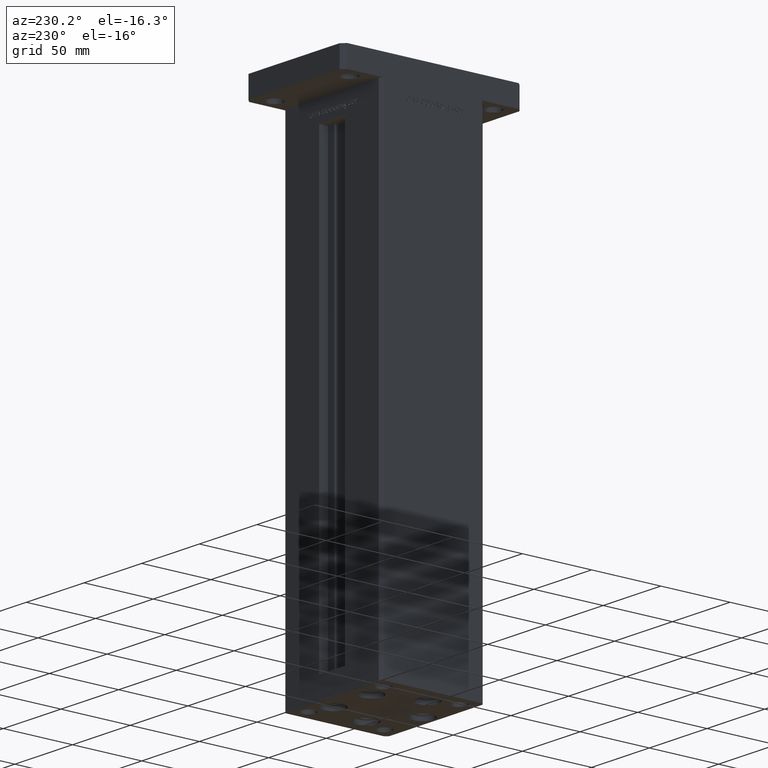
[diagram: clean part render]
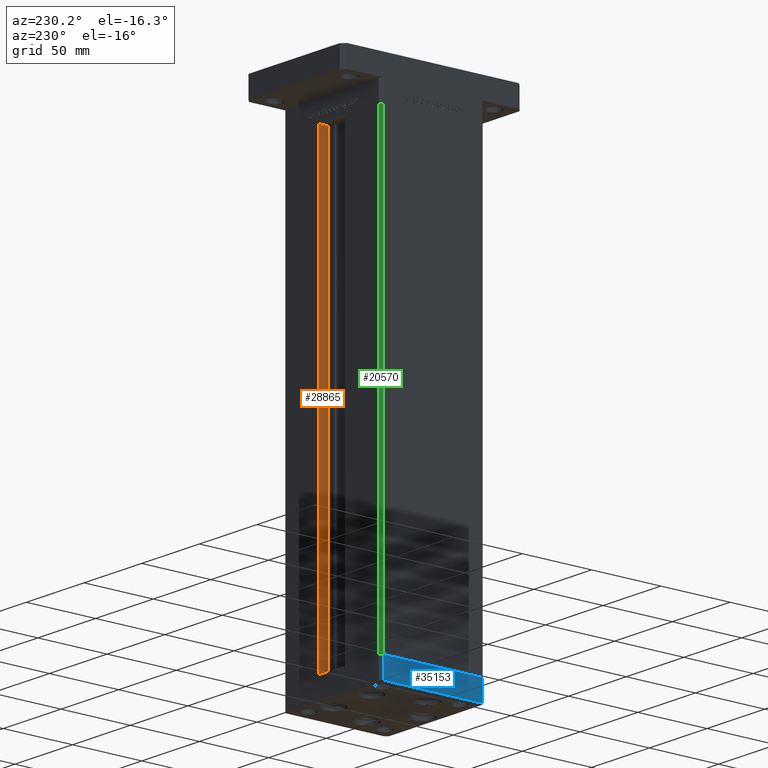
[diagram: same view with three faces highlighted in distinct colors, each labeled with its STEP entity id]
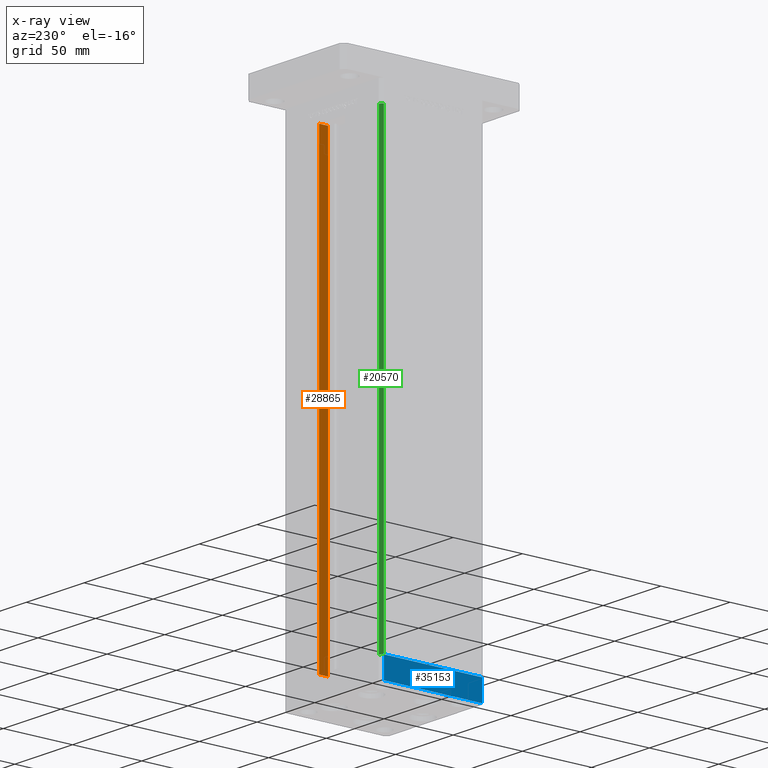
[diagram: x-ray of the same camera — body ghosted, the three highlighted faces saturated]
A machine part, auxiliary view with three faces highlighted in distinct colors.
The next image is the same camera in x-ray (body ghosted, the three faces saturated) — at least one of them is partly hidden behind the body in this view.
Their STEP definitions:

[orange] entity #28865 — the highlighted planar face has unit normal (1, 0, 0).
#2140 = DIRECTION ( 'NONE',  ( 1.000000000000000000, -0.000000000000000000, 0.000000000000000000 ) ) ;
#2579 = LINE ( 'NONE', #39192, #50761 ) ;
#2976 = EDGE_LOOP ( 'NONE', ( #50084, #15561, #22831, #21538 ) ) ;
#3585 = VERTEX_POINT ( 'NONE', #7107 ) ;
#3912 = VECTOR ( 'NONE', #25827, 1000.000000000000000 ) ;
#3961 = LINE ( 'NONE', #41383, #40100 ) ;
#6197 = FACE_OUTER_BOUND ( 'NONE', #2976, .T. ) ;
#7107 = CARTESIAN_POINT ( 'NONE',  ( 11.25000000000000000, 37.50000000000000000, 0.000000000000000000 ) ) ;
#7566 = CARTESIAN_POINT ( 'NONE',  ( 11.25000000000000000, 37.50000000000000000, 0.000000000000000000 ) ) ;
#10174 = DIRECTION ( 'NONE',  ( -0.000000000000000000, -0.000000000000000000, 1.000000000000000000 ) ) ;
#12088 = EDGE_CURVE ( 'NONE', #35569, #3585, #3961, .T. ) ;
#15561 = ORIENTED_EDGE ( 'NONE', *, *, #12088, .F. ) ;
#18333 = CARTESIAN_POINT ( 'NONE',  ( 11.24999999999999289, 37.50000000000000000, 318.5000000000000000 ) ) ;
#19541 = CARTESIAN_POINT ( 'NONE',  ( 11.25000000000000000, 30.99999999999999289, 0.000000000000000000 ) ) ;
#20197 = VECTOR ( 'NONE', #24099, 1000.000000000000000 ) ;
#21538 = ORIENTED_EDGE ( 'NONE', *, *, #49870, .F. ) ;
#22831 = ORIENTED_EDGE ( 'NONE', *, *, #24605, .T. ) ;
#23002 = CARTESIAN_POINT ( 'NONE',  ( 11.25000000000000000, 30.99999999999999289, 0.000000000000000000 ) ) ;
#24099 = DIRECTION ( 'NONE',  ( -0.000000000000000000, -0.000000000000000000, 1.000000000000000000 ) ) ;
#24605 = EDGE_CURVE ( 'NONE', #35569, #40486, #2579, .T. ) ;
#25277 = VERTEX_POINT ( 'NONE', #18333 ) ;
#25827 = DIRECTION ( 'NONE',  ( -0.000000000000000000, -1.000000000000000000, 0.000000000000000000 ) ) ;
#27727 = CARTESIAN_POINT ( 'NONE',  ( 11.25000000000000000, 30.99999999999999289, 318.5000000000000000 ) ) ;
#28865 = ADVANCED_FACE ( 'NONE', ( #6197 ), #35739, .F. ) ;
#30409 = LINE ( 'NONE', #50797, #3912 ) ;
#30866 = DIRECTION ( 'NONE',  ( 0.000000000000000000, 0.000000000000000000, -1.000000000000000000 ) ) ;
#31789 = AXIS2_PLACEMENT_3D ( 'NONE', #23002, #2140, #30866 ) ;
#33213 = DIRECTION ( 'NONE',  ( 0.000000000000000000, 1.000000000000000000, 0.000000000000000000 ) ) ;
#35569 = VERTEX_POINT ( 'NONE', #19541 ) ;
#35739 = PLANE ( 'NONE',  #31789 ) ;
#39192 = CARTESIAN_POINT ( 'NONE',  ( 11.25000000000000000, 30.99999999999999289, 0.000000000000000000 ) ) ;
#40100 = VECTOR ( 'NONE', #33213, 1000.000000000000000 ) ;
#40486 = VERTEX_POINT ( 'NONE', #27727 ) ;
#41383 = CARTESIAN_POINT ( 'NONE',  ( 11.25000000000000000, 30.99999999999999289, 0.000000000000000000 ) ) ;
#44686 = EDGE_CURVE ( 'NONE', #3585, #25277, #44729, .T. ) ;
#44729 = LINE ( 'NONE', #7566, #20197 ) ;
#49870 = EDGE_CURVE ( 'NONE', #25277, #40486, #30409, .T. ) ;
#50084 = ORIENTED_EDGE ( 'NONE', *, *, #44686, .F. ) ;
#50761 = VECTOR ( 'NONE', #10174, 1000.000000000000000 ) ;
#50797 = CARTESIAN_POINT ( 'NONE',  ( 11.25000000000000000, 0.000000000000000000, 318.5000000000000000 ) ) ;

[blue] entity #35153 — the highlighted planar face has unit normal (-1, 0, 0).
#927 = LINE ( 'NONE', #21256, #45488 ) ;
#2759 = ORIENTED_EDGE ( 'NONE', *, *, #21124, .F. ) ;
#3702 = LINE ( 'NONE', #20234, #40257 ) ;
#4541 = EDGE_CURVE ( 'NONE', #14208, #49527, #4712, .T. ) ;
#4712 = LINE ( 'NONE', #7978, #45914 ) ;
#6618 = ORIENTED_EDGE ( 'NONE', *, *, #50323, .F. ) ;
#7039 = CARTESIAN_POINT ( 'NONE',  ( 42.50000000000000711, -35.50000000000000000, -15.00000000000000000 ) ) ;
#7978 = CARTESIAN_POINT ( 'NONE',  ( 42.50000000000000711, -35.50000000000000000, -15.00000000000000000 ) ) ;
#12846 = FACE_OUTER_BOUND ( 'NONE', #48014, .T. ) ;
#14208 = VERTEX_POINT ( 'NONE', #7039 ) ;
#18574 = VERTEX_POINT ( 'NONE', #23117 ) ;
#19201 = EDGE_CURVE ( 'NONE', #49527, #18574, #34327, .T. ) ;
#20234 = CARTESIAN_POINT ( 'NONE',  ( 42.50000000000000711, -35.50000000000000000, 0.000000000000000000 ) ) ;
#21124 = EDGE_CURVE ( 'NONE', #21216, #18574, #3702, .T. ) ;
#21216 = VERTEX_POINT ( 'NONE', #43013 ) ;
#21245 = DIRECTION ( 'NONE',  ( -1.172770800660376741E-15, 1.000000000000000000, 0.000000000000000000 ) ) ;
#21256 = CARTESIAN_POINT ( 'NONE',  ( 42.50000000000000711, -35.50000000000000000, -15.00000000000000000 ) ) ;
#21258 = DIRECTION ( 'NONE',  ( 1.000000000000000000, 1.172770800660376741E-15, -0.000000000000000000 ) ) ;
#23117 = CARTESIAN_POINT ( 'NONE',  ( 42.49999999999992895, 35.50000000000000000, 0.000000000000000000 ) ) ;
#29395 = PLANE ( 'NONE',  #53623 ) ;
#29663 = DIRECTION ( 'NONE',  ( 0.000000000000000000, 0.000000000000000000, 1.000000000000000000 ) ) ;
#33514 = DIRECTION ( 'NONE',  ( 0.000000000000000000, 0.000000000000000000, 1.000000000000000000 ) ) ;
#34327 = LINE ( 'NONE', #50365, #50614 ) ;
#34533 = CARTESIAN_POINT ( 'NONE',  ( 42.50000000000000711, -35.50000000000000000, -15.00000000000000000 ) ) ;
#35153 = ADVANCED_FACE ( 'NONE', ( #12846 ), #29395, .T. ) ;
#40257 = VECTOR ( 'NONE', #53355, 1000.000000000000000 ) ;
#40895 = CARTESIAN_POINT ( 'NONE',  ( 42.49999999999992895, 35.50000000000000000, -15.00000000000000000 ) ) ;
#42688 = DIRECTION ( 'NONE',  ( -1.172770800660376741E-15, 1.000000000000000000, 0.000000000000000000 ) ) ;
#43013 = CARTESIAN_POINT ( 'NONE',  ( 42.50000000000000711, -35.50000000000000000, 0.000000000000000000 ) ) ;
#45488 = VECTOR ( 'NONE', #29663, 1000.000000000000000 ) ;
#45914 = VECTOR ( 'NONE', #21245, 1000.000000000000000 ) ;
#48014 = EDGE_LOOP ( 'NONE', ( #2759, #6618, #52805, #52836 ) ) ;
#49527 = VERTEX_POINT ( 'NONE', #40895 ) ;
#50323 = EDGE_CURVE ( 'NONE', #14208, #21216, #927, .T. ) ;
#50365 = CARTESIAN_POINT ( 'NONE',  ( 42.49999999999992895, 35.50000000000000000, -15.00000000000000000 ) ) ;
#50614 = VECTOR ( 'NONE', #33514, 1000.000000000000000 ) ;
#52805 = ORIENTED_EDGE ( 'NONE', *, *, #4541, .T. ) ;
#52836 = ORIENTED_EDGE ( 'NONE', *, *, #19201, .T. ) ;
#53355 = DIRECTION ( 'NONE',  ( -1.172770800660376741E-15, 1.000000000000000000, 0.000000000000000000 ) ) ;
#53623 = AXIS2_PLACEMENT_3D ( 'NONE', #34533, #21258, #42688 ) ;

[green] entity #20570 — the highlighted planar face has unit normal (0.7071, -0.7071, 0).
#2942 = DIRECTION ( 'NONE',  ( -0.7071067811865500152, -0.7071067811865451302, 0.000000000000000000 ) ) ;
#4869 = ORIENTED_EDGE ( 'NONE', *, *, #49397, .T. ) ;
#5239 = PLANE ( 'NONE',  #6447 ) ;
#6302 = EDGE_CURVE ( 'NONE', #19164, #40178, #50373, .T. ) ;
#6447 = AXIS2_PLACEMENT_3D ( 'NONE', #21762, #37515, #29371 ) ;
#8895 = VECTOR ( 'NONE', #38377, 1000.000000000000000 ) ;
#10538 = CARTESIAN_POINT ( 'NONE',  ( -40.50000000000000000, 37.50000000000000711, 0.000000000000000000 ) ) ;
#12415 = EDGE_CURVE ( 'NONE', #51659, #25175, #29423, .T. ) ;
#12913 = CARTESIAN_POINT ( 'NONE',  ( -40.50000000000000000, 37.50000000000000711, 318.5000000000000000 ) ) ;
#17553 = ORIENTED_EDGE ( 'NONE', *, *, #6302, .T. ) ;
#18165 = EDGE_LOOP ( 'NONE', ( #4869, #21294, #52846, #17553 ) ) ;
#19164 = VERTEX_POINT ( 'NONE', #38407 ) ;
#20570 = ADVANCED_FACE ( 'NONE', ( #29108 ), #5239, .F. ) ;
#21294 = ORIENTED_EDGE ( 'NONE', *, *, #12415, .F. ) ;
#21762 = CARTESIAN_POINT ( 'NONE',  ( -40.50000000000000000, 37.50000000000000711, 318.5000000000000000 ) ) ;
#22208 = CARTESIAN_POINT ( 'NONE',  ( -42.50000000000000711, 35.50000000000001421, 318.5000000000000000 ) ) ;
#25175 = VERTEX_POINT ( 'NONE', #46007 ) ;
#25363 = CARTESIAN_POINT ( 'NONE',  ( -42.50000000000000711, 35.50000000000001421, 318.5000000000000000 ) ) ;
#25879 = VECTOR ( 'NONE', #30071, 1000.000000000000114 ) ;
#28065 = CARTESIAN_POINT ( 'NONE',  ( -40.50000000000000000, 37.50000000000000711, 0.000000000000000000 ) ) ;
#29108 = FACE_OUTER_BOUND ( 'NONE', #18165, .T. ) ;
#29371 = DIRECTION ( 'NONE',  ( 0.7071067811865500152, 0.7071067811865451302, 0.000000000000000000 ) ) ;
#29423 = LINE ( 'NONE', #25363, #8895 ) ;
#29832 = VECTOR ( 'NONE', #2942, 1000.000000000000114 ) ;
#30071 = DIRECTION ( 'NONE',  ( -0.7071067811865500152, -0.7071067811865451302, 0.000000000000000000 ) ) ;
#33693 = EDGE_CURVE ( 'NONE', #19164, #51659, #42294, .T. ) ;
#34053 = DIRECTION ( 'NONE',  ( -0.000000000000000000, -0.000000000000000000, -1.000000000000000000 ) ) ;
#35560 = VECTOR ( 'NONE', #34053, 1000.000000000000000 ) ;
#37515 = DIRECTION ( 'NONE',  ( 0.7071067811865451302, -0.7071067811865500152, 0.000000000000000000 ) ) ;
#38377 = DIRECTION ( 'NONE',  ( -0.000000000000000000, -0.000000000000000000, -1.000000000000000000 ) ) ;
#38407 = CARTESIAN_POINT ( 'NONE',  ( -40.50000000000000000, 37.50000000000000711, 318.5000000000000000 ) ) ;
#38756 = CARTESIAN_POINT ( 'NONE',  ( -40.50000000000000000, 37.50000000000000711, 318.5000000000000000 ) ) ;
#40178 = VERTEX_POINT ( 'NONE', #28065 ) ;
#42294 = LINE ( 'NONE', #38756, #25879 ) ;
#46007 = CARTESIAN_POINT ( 'NONE',  ( -42.50000000000000711, 35.50000000000001421, 0.000000000000000000 ) ) ;
#49397 = EDGE_CURVE ( 'NONE', #40178, #25175, #51525, .T. ) ;
#50373 = LINE ( 'NONE', #12913, #35560 ) ;
#51525 = LINE ( 'NONE', #10538, #29832 ) ;
#51659 = VERTEX_POINT ( 'NONE', #22208 ) ;
#52846 = ORIENTED_EDGE ( 'NONE', *, *, #33693, .F. ) ;